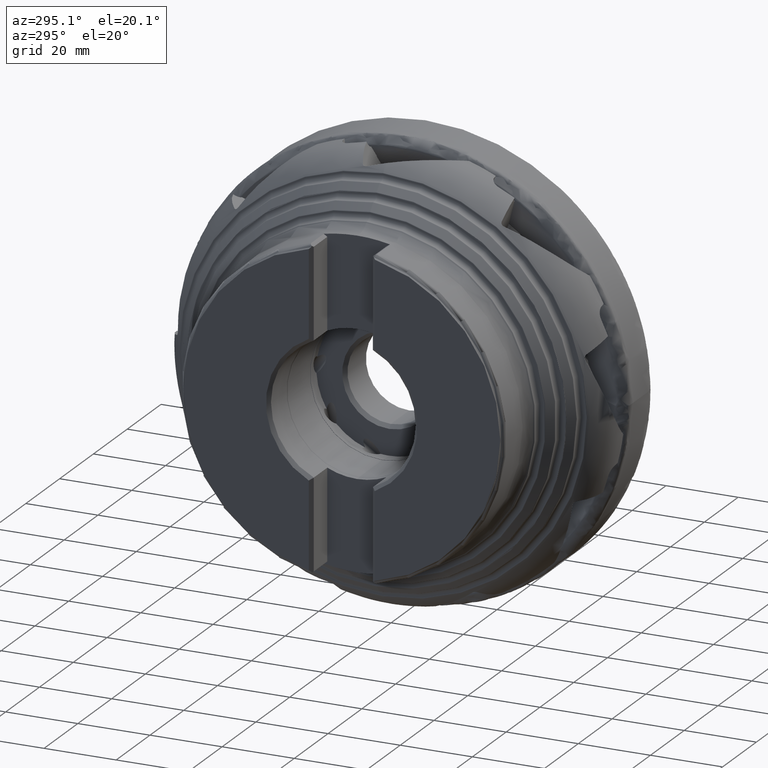
[diagram: clean part render]
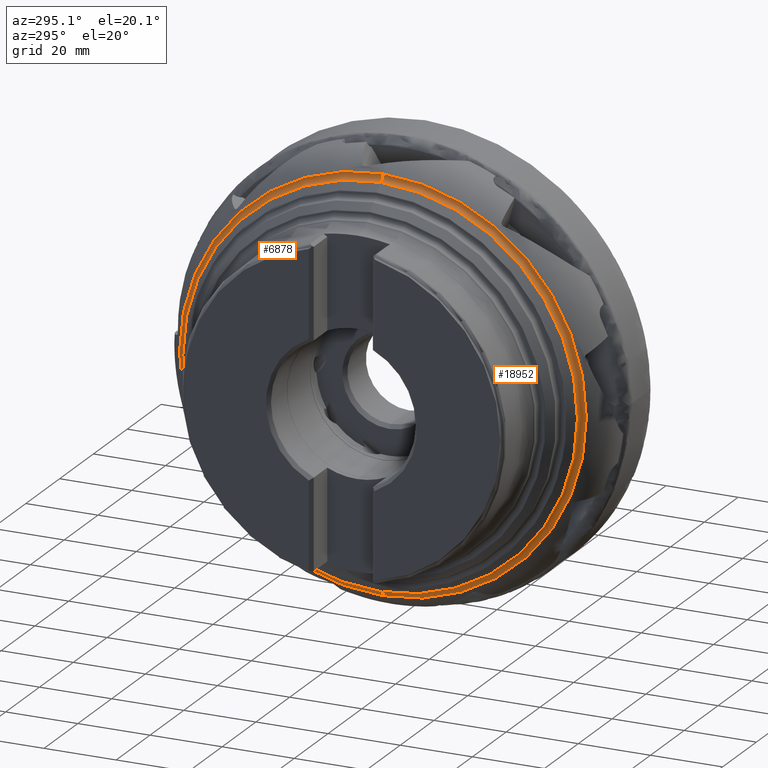
[diagram: same view with one multi-face feature highlighted, each face labeled with its STEP entity id]
A machine part, auxiliary view. The highlighted faces form ONE feature: a constant-radius fillet chain: 2 tangent blend faces with common blend radius 1.5 mm. The faces share edges in the B-rep.
Their STEP definitions:
[1] entity #6878 (Torus):
#512 = DIRECTION ( 'NONE',  ( -1.000000000000000000, -0.0000000000000000000, -0.0000000000000000000 ) ) ;
#537 = EDGE_CURVE ( 'NONE', #12645, #19761, #20001, .T. ) ;
#594 = CARTESIAN_POINT ( 'NONE',  ( -26.30000000000001100, 0.0000000000000000000, 0.0000000000000000000 ) ) ;
#678 = DIRECTION ( 'NONE',  ( 0.0000000000000000000, 0.0000000000000000000, 1.000000000000000000 ) ) ;
#1196 = AXIS2_PLACEMENT_3D ( 'NONE', #594, #512, #678 ) ;
#1710 = CARTESIAN_POINT ( 'NONE',  ( -26.30000000000001100, 6.872667842729503000E-015, -56.11959176731218700 ) ) ;
#2341 = DIRECTION ( 'NONE',  ( -1.000000000000000000, -0.0000000000000000000, -0.0000000000000000000 ) ) ;
#2891 = CARTESIAN_POINT ( 'NONE',  ( -26.30000000000001100, 0.0000000000000000000, 54.61959176731218700 ) ) ;
#3606 = DIRECTION ( 'NONE',  ( 0.0000000000000000000, -1.000000000000000000, 0.0000000000000000000 ) ) ;
#3846 = VERTEX_POINT ( 'NONE', #2891 ) ;
#4314 = AXIS2_PLACEMENT_3D ( 'NONE', #25581, #3606, #5597 ) ;
#4578 = CARTESIAN_POINT ( 'NONE',  ( -26.30000000000001100, 6.688970822857399500E-015, -54.61959176731218700 ) ) ;
#5321 = CARTESIAN_POINT ( 'NONE',  ( -24.82227458707912100, 0.0000000000000000000, 56.37713322804218300 ) ) ;
#5488 = VERTEX_POINT ( 'NONE', #5321 ) ;
#5597 = DIRECTION ( 'NONE',  ( 0.0000000000000000000, 0.0000000000000000000, -1.000000000000000000 ) ) ;
#5788 = ORIENTED_EDGE ( 'NONE', *, *, #25618, .T. ) ;
#5795 = DIRECTION ( 'NONE',  ( -0.0000000000000000000, 1.000000000000000000, 1.224646799147353200E-016 ) ) ;
#6878 = ADVANCED_FACE ( 'NONE', ( #20737 ), #21373, .F. ) ;
#7880 = DIRECTION ( 'NONE',  ( 0.0000000000000000000, -1.224646799147354400E-016, 1.000000000000000000 ) ) ;
#7921 = CARTESIAN_POINT ( 'NONE',  ( -24.82227458707912100, 6.904207575282574600E-015, -56.37713322804218300 ) ) ;
#9900 = AXIS2_PLACEMENT_3D ( 'NONE', #12318, #24473, #14518 ) ;
#10315 = CIRCLE ( 'NONE', #17266, 56.37713322801722900 ) ;
#10714 = CARTESIAN_POINT ( 'NONE',  ( -24.82227458707912100, 0.0000000000000000000, 0.0000000000000000000 ) ) ;
#10799 = AXIS2_PLACEMENT_3D ( 'NONE', #1710, #5795, #7880 ) ;
#12318 = CARTESIAN_POINT ( 'NONE',  ( -26.30000000000001100, 0.0000000000000000000, 0.0000000000000000000 ) ) ;
#12532 = ORIENTED_EDGE ( 'NONE', *, *, #537, .F. ) ;
#12645 = VERTEX_POINT ( 'NONE', #4578 ) ;
#14210 = ORIENTED_EDGE ( 'NONE', *, *, #20044, .T. ) ;
#14328 = ORIENTED_EDGE ( 'NONE', *, *, #19904, .F. ) ;
#14518 = DIRECTION ( 'NONE',  ( 0.0000000000000000000, 0.0000000000000000000, 1.000000000000000000 ) ) ;
#15043 = EDGE_LOOP ( 'NONE', ( #14328, #5788, #14210, #12532 ) ) ;
#17266 = AXIS2_PLACEMENT_3D ( 'NONE', #10714, #2341, #24677 ) ;
#18756 = CIRCLE ( 'NONE', #4314, 1.500000000000001300 ) ;
#19761 = VERTEX_POINT ( 'NONE', #7921 ) ;
#19904 = EDGE_CURVE ( 'NONE', #3846, #12645, #24735, .T. ) ;
#20001 = CIRCLE ( 'NONE', #10799, 1.500000000000001300 ) ;
#20044 = EDGE_CURVE ( 'NONE', #5488, #19761, #10315, .T. ) ;
#20737 = FACE_OUTER_BOUND ( 'NONE', #15043, .T. ) ;
#21373 = TOROIDAL_SURFACE ( 'NONE', #9900, 56.11959176731218700, 1.500000000000000900 ) ;
#24473 = DIRECTION ( 'NONE',  ( -1.000000000000000000, -0.0000000000000000000, -0.0000000000000000000 ) ) ;
#24677 = DIRECTION ( 'NONE',  ( 0.0000000000000000000, 0.0000000000000000000, 1.000000000000000000 ) ) ;
#24735 = CIRCLE ( 'NONE', #1196, 54.61959176731218700 ) ;
#25581 = CARTESIAN_POINT ( 'NONE',  ( -26.30000000000001100, 0.0000000000000000000, 56.11959176731218700 ) ) ;
#25618 = EDGE_CURVE ( 'NONE', #3846, #5488, #18756, .T. ) ;
[2] entity #18952 (Torus):
#503 = AXIS2_PLACEMENT_3D ( 'NONE', #12425, #18210, #16383 ) ;
#537 = EDGE_CURVE ( 'NONE', #12645, #19761, #20001, .T. ) ;
#1325 = AXIS2_PLACEMENT_3D ( 'NONE', #3576, #3824, #1735 ) ;
#1503 = EDGE_CURVE ( 'NONE', #19761, #5488, #14946, .T. ) ;
#1710 = CARTESIAN_POINT ( 'NONE',  ( -26.30000000000001100, 6.872667842729503000E-015, -56.11959176731218700 ) ) ;
#1735 = DIRECTION ( 'NONE',  ( 0.0000000000000000000, 0.0000000000000000000, 1.000000000000000000 ) ) ;
#1850 = AXIS2_PLACEMENT_3D ( 'NONE', #18115, #2587, #24392 ) ;
#2587 = DIRECTION ( 'NONE',  ( -1.000000000000000000, -0.0000000000000000000, -0.0000000000000000000 ) ) ;
#2891 = CARTESIAN_POINT ( 'NONE',  ( -26.30000000000001100, 0.0000000000000000000, 54.61959176731218700 ) ) ;
#3576 = CARTESIAN_POINT ( 'NONE',  ( -24.82227458707912100, 0.0000000000000000000, 0.0000000000000000000 ) ) ;
#3606 = DIRECTION ( 'NONE',  ( 0.0000000000000000000, -1.000000000000000000, 0.0000000000000000000 ) ) ;
#3824 = DIRECTION ( 'NONE',  ( -1.000000000000000000, -0.0000000000000000000, -0.0000000000000000000 ) ) ;
#3846 = VERTEX_POINT ( 'NONE', #2891 ) ;
#4314 = AXIS2_PLACEMENT_3D ( 'NONE', #25581, #3606, #5597 ) ;
#4578 = CARTESIAN_POINT ( 'NONE',  ( -26.30000000000001100, 6.688970822857399500E-015, -54.61959176731218700 ) ) ;
#5321 = CARTESIAN_POINT ( 'NONE',  ( -24.82227458707912100, 0.0000000000000000000, 56.37713322804218300 ) ) ;
#5488 = VERTEX_POINT ( 'NONE', #5321 ) ;
#5597 = DIRECTION ( 'NONE',  ( 0.0000000000000000000, 0.0000000000000000000, -1.000000000000000000 ) ) ;
#5795 = DIRECTION ( 'NONE',  ( -0.0000000000000000000, 1.000000000000000000, 1.224646799147353200E-016 ) ) ;
#7880 = DIRECTION ( 'NONE',  ( 0.0000000000000000000, -1.224646799147354400E-016, 1.000000000000000000 ) ) ;
#7921 = CARTESIAN_POINT ( 'NONE',  ( -24.82227458707912100, 6.904207575282574600E-015, -56.37713322804218300 ) ) ;
#8095 = ORIENTED_EDGE ( 'NONE', *, *, #1503, .T. ) ;
#9535 = CIRCLE ( 'NONE', #1850, 54.61959176731218700 ) ;
#10799 = AXIS2_PLACEMENT_3D ( 'NONE', #1710, #5795, #7880 ) ;
#11930 = FACE_OUTER_BOUND ( 'NONE', #12499, .T. ) ;
#12336 = ORIENTED_EDGE ( 'NONE', *, *, #537, .T. ) ;
#12425 = CARTESIAN_POINT ( 'NONE',  ( -26.30000000000001100, 0.0000000000000000000, 0.0000000000000000000 ) ) ;
#12499 = EDGE_LOOP ( 'NONE', ( #14547, #12336, #8095, #17960 ) ) ;
#12645 = VERTEX_POINT ( 'NONE', #4578 ) ;
#14547 = ORIENTED_EDGE ( 'NONE', *, *, #15510, .F. ) ;
#14946 = CIRCLE ( 'NONE', #1325, 56.37713322801722900 ) ;
#15510 = EDGE_CURVE ( 'NONE', #12645, #3846, #9535, .T. ) ;
#15708 = TOROIDAL_SURFACE ( 'NONE', #503, 56.11959176731218700, 1.500000000000000900 ) ;
#16383 = DIRECTION ( 'NONE',  ( 0.0000000000000000000, 0.0000000000000000000, 1.000000000000000000 ) ) ;
#17960 = ORIENTED_EDGE ( 'NONE', *, *, #25618, .F. ) ;
#18115 = CARTESIAN_POINT ( 'NONE',  ( -26.30000000000001100, 0.0000000000000000000, 0.0000000000000000000 ) ) ;
#18210 = DIRECTION ( 'NONE',  ( -1.000000000000000000, -0.0000000000000000000, -0.0000000000000000000 ) ) ;
#18756 = CIRCLE ( 'NONE', #4314, 1.500000000000001300 ) ;
#18952 = ADVANCED_FACE ( 'NONE', ( #11930 ), #15708, .F. ) ;
#19761 = VERTEX_POINT ( 'NONE', #7921 ) ;
#20001 = CIRCLE ( 'NONE', #10799, 1.500000000000001300 ) ;
#24392 = DIRECTION ( 'NONE',  ( 0.0000000000000000000, 0.0000000000000000000, 1.000000000000000000 ) ) ;
#25581 = CARTESIAN_POINT ( 'NONE',  ( -26.30000000000001100, 0.0000000000000000000, 56.11959176731218700 ) ) ;
#25618 = EDGE_CURVE ( 'NONE', #3846, #5488, #18756, .T. ) ;